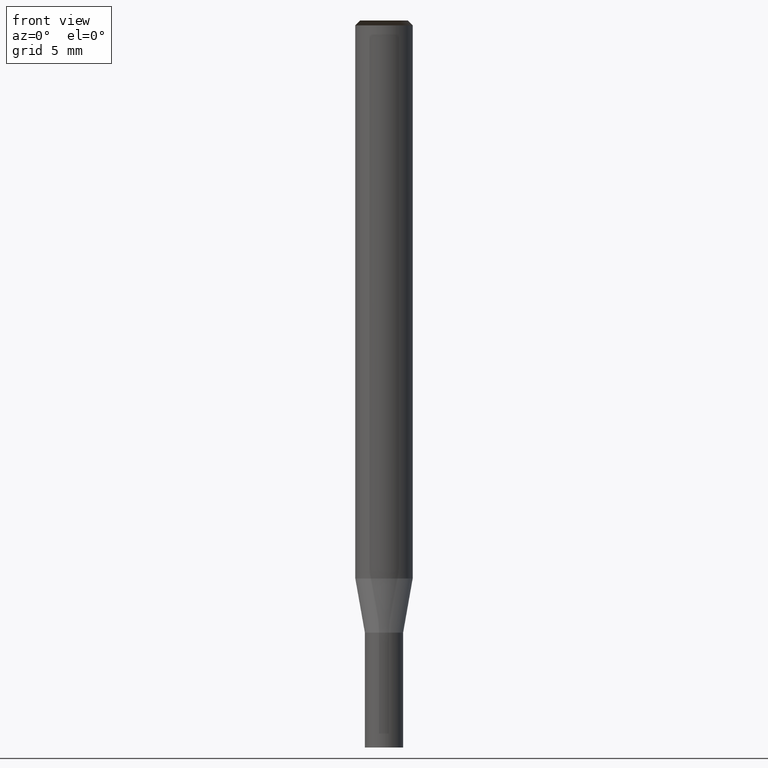
[diagram: clean part render]
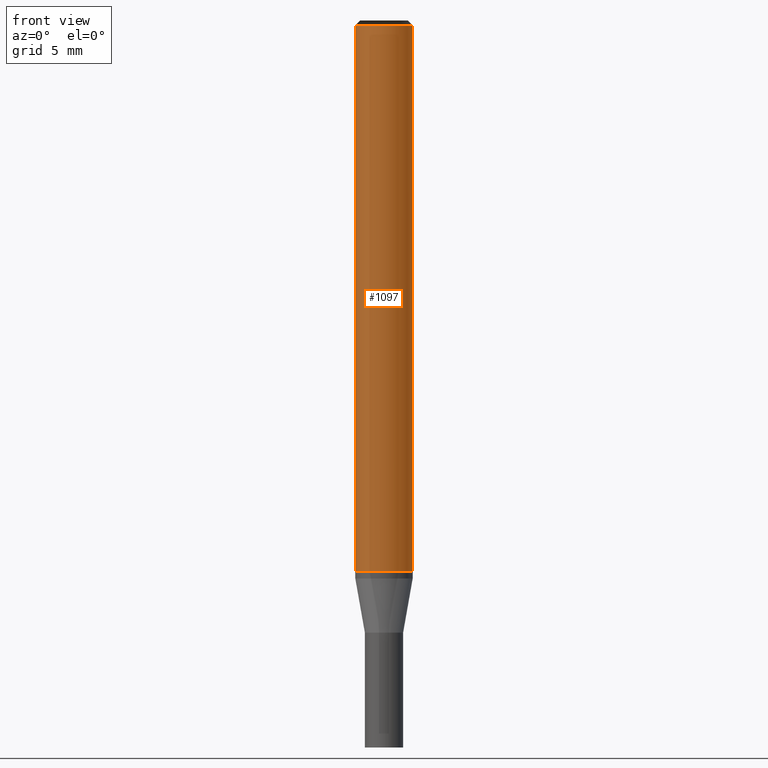
[diagram: same view with one face highlighted and labeled with its STEP entity id]
A machine part, front view. The second image highlights one B-rep face of the part: STEP entity #1097.
In plain terms, the highlighted face is a freeform B-spline surface patch.
Its self-contained STEP definition (entity closure, byte-faithful):
#767=CARTESIAN_POINT('',(1.5,0.0,0.0));
#771=CARTESIAN_POINT('',(-1.5,0.0,0.0));
#772=CARTESIAN_POINT('',(1.5,0.0,28.55));
#776=CARTESIAN_POINT('',(-1.5,0.0,28.55));
#786=CARTESIAN_POINT('',(-1.5,-1.5,0.0));
#787=CARTESIAN_POINT('',(0.0,-1.5,0.0));
#788=CARTESIAN_POINT('',(1.5,-1.5,0.0));
#789=CARTESIAN_POINT('',(-1.5,-1.5,28.55));
#790=CARTESIAN_POINT('',(0.0,-1.5,28.55));
#791=CARTESIAN_POINT('',(1.5,-1.5,28.55));
#1078=(
BOUNDED_SURFACE()
B_SPLINE_SURFACE(1,2,(
(#771,#786,#787,#788,#767),
(#776,#789,#790,#791,#772)
), .UNSPECIFIED.,.F.,.F.,.F.)
B_SPLINE_SURFACE_WITH_KNOTS((2,2),(3,2,3),(
0.0,1.0),(
0.0,0.5,1.0), .UNSPECIFIED.)
GEOMETRIC_REPRESENTATION_ITEM()
RATIONAL_B_SPLINE_SURFACE(((1.0,0.707106781187,1.0,0.707106781187,1.0),
(1.0,0.707106781187,1.0,0.707106781187,1.0)
))
REPRESENTATION_ITEM('')
SURFACE()
);
#1079=(
BOUNDED_CURVE()
B_SPLINE_CURVE(2,(#767,#788,#787,#786,#771),.UNSPECIFIED.,.F.,.F.)
B_SPLINE_CURVE_WITH_KNOTS((3,2,3),
(0.0,0.5,1.0),.UNSPECIFIED.)
CURVE()
GEOMETRIC_REPRESENTATION_ITEM()
RATIONAL_B_SPLINE_CURVE((1.0,0.707106781187,1.0,0.707106781187,1.0))
REPRESENTATION_ITEM('')
);
#1080=(
BOUNDED_CURVE()
B_SPLINE_CURVE(1,(#771,#776),.UNSPECIFIED.,.F.,.F.)
B_SPLINE_CURVE_WITH_KNOTS((2,2),
(0.0,1.0),.UNSPECIFIED.)
CURVE()
GEOMETRIC_REPRESENTATION_ITEM()
RATIONAL_B_SPLINE_CURVE((1.0,1.0))
REPRESENTATION_ITEM('')
);
#1081=(
BOUNDED_CURVE()
B_SPLINE_CURVE(2,(#776,#789,#790,#791,#772),.UNSPECIFIED.,.F.,.F.)
B_SPLINE_CURVE_WITH_KNOTS((3,2,3),
(0.0,0.5,1.0),.UNSPECIFIED.)
CURVE()
GEOMETRIC_REPRESENTATION_ITEM()
RATIONAL_B_SPLINE_CURVE((1.0,0.707106781187,1.0,0.707106781187,1.0))
REPRESENTATION_ITEM('')
);
#1082=(
BOUNDED_CURVE()
B_SPLINE_CURVE(1,(#772,#767),.UNSPECIFIED.,.F.,.F.)
B_SPLINE_CURVE_WITH_KNOTS((2,2),
(0.0,1.0),.UNSPECIFIED.)
CURVE()
GEOMETRIC_REPRESENTATION_ITEM()
RATIONAL_B_SPLINE_CURVE((1.0,1.0))
REPRESENTATION_ITEM('')
);
#1083=VERTEX_POINT('',#767);
#1084=VERTEX_POINT('',#771);
#1085=VERTEX_POINT('',#772);
#1086=VERTEX_POINT('',#776);
#1087=EDGE_CURVE('',#1083,#1084,#1079,.T.);
#1088=EDGE_CURVE('',#1084,#1086,#1080,.T.);
#1089=EDGE_CURVE('',#1086,#1085,#1081,.T.);
#1090=EDGE_CURVE('',#1085,#1083,#1082,.T.);
#1091=ORIENTED_EDGE('',*,*,#1087,.T.);
#1092=ORIENTED_EDGE('',*,*,#1088,.T.);
#1093=ORIENTED_EDGE('',*,*,#1089,.T.);
#1094=ORIENTED_EDGE('',*,*,#1090,.T.);
#1095=EDGE_LOOP('',(#1091,#1092,#1093,#1094));
#1096=FACE_OUTER_BOUND('',#1095,.T.);
#1097=ADVANCED_FACE('',(#1096),#1078,.T.);